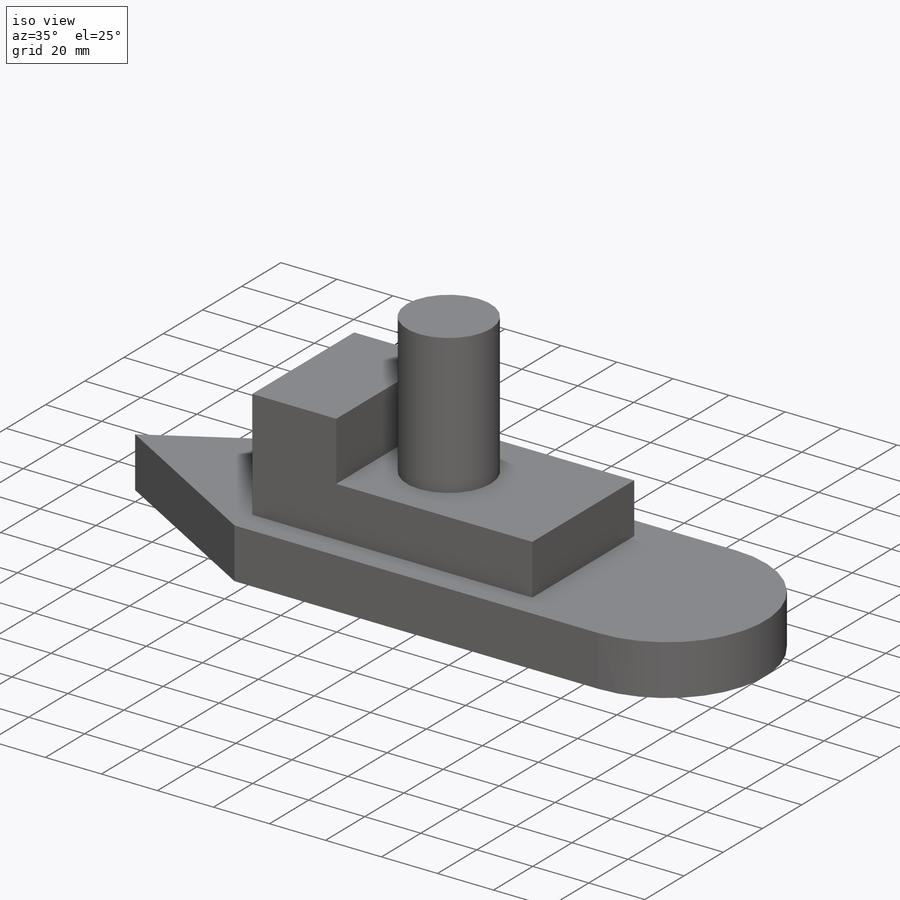
[diagram: iso view]
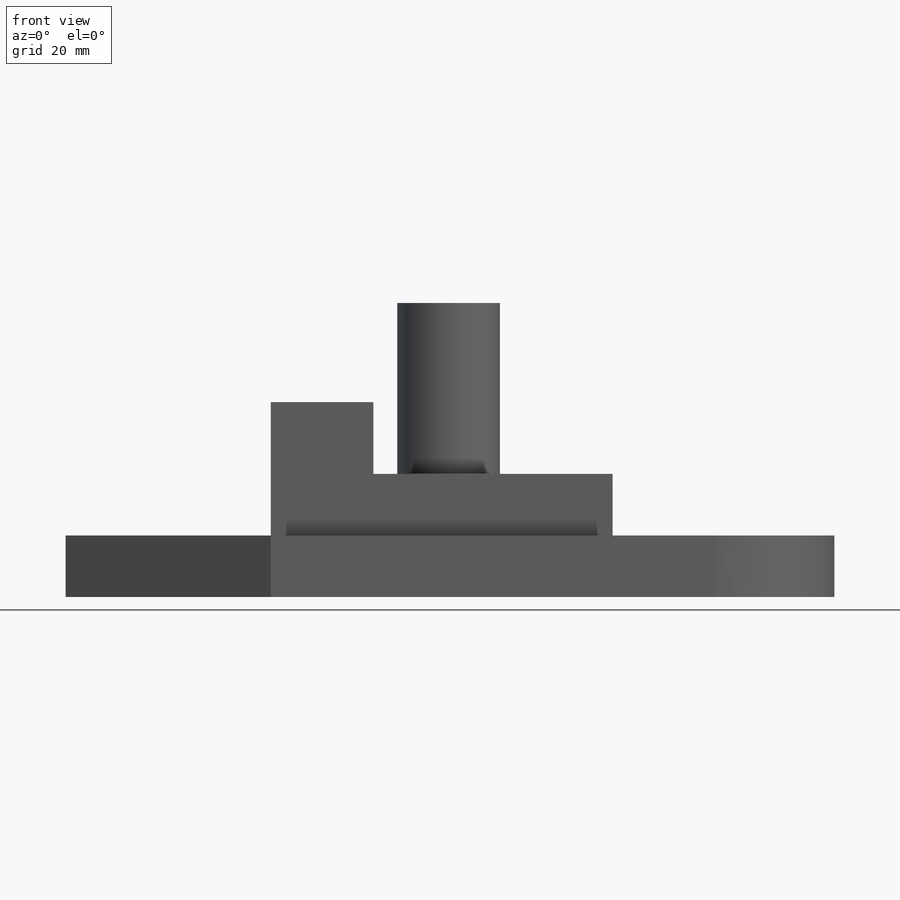
[diagram: front view]
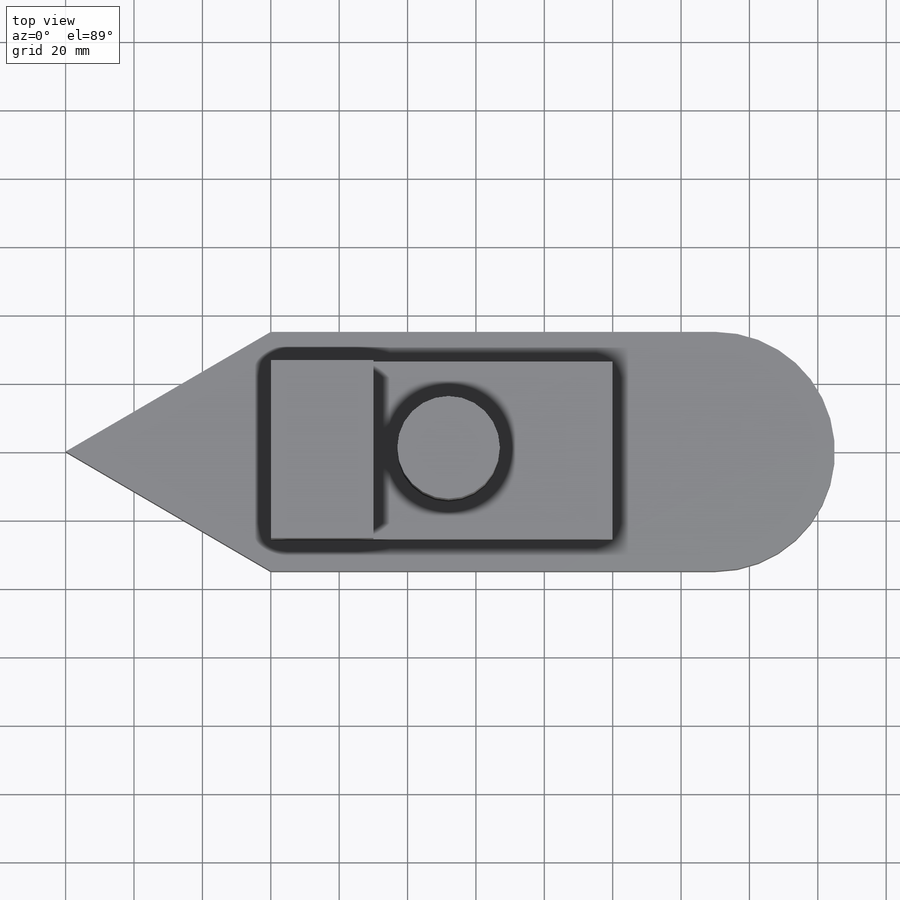
[diagram: top view]
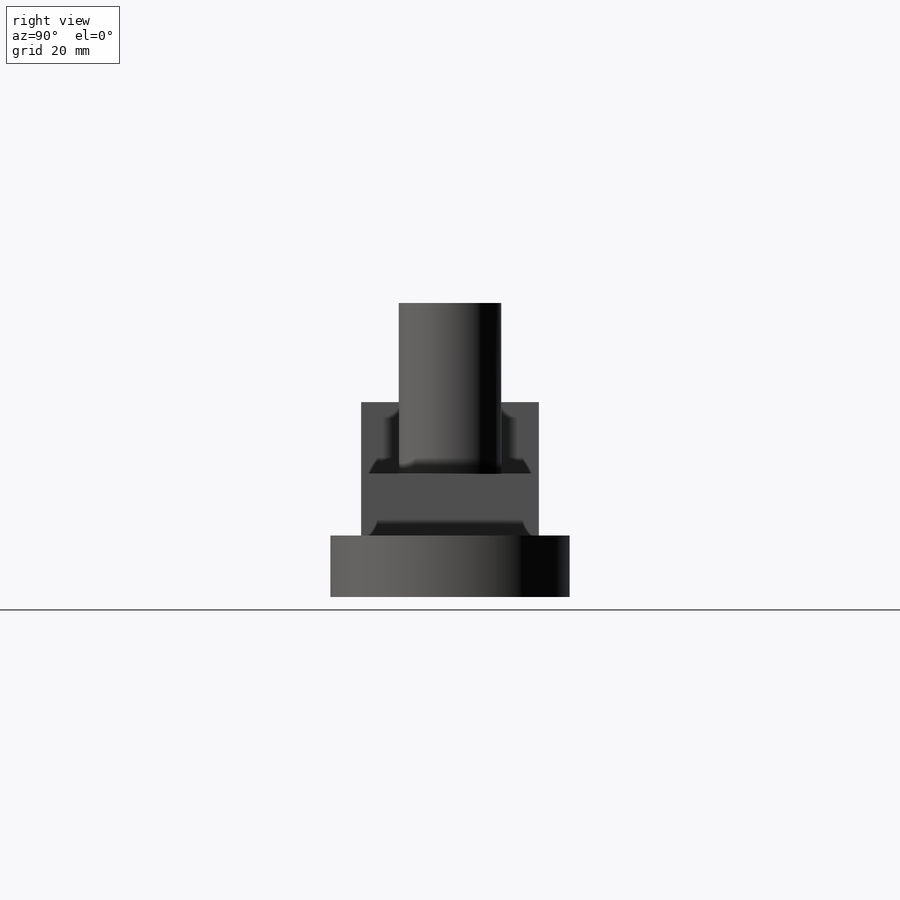
[diagram: right view]
SOLIDWORKS PART (.sldprt)
format: sldprt  version: not decoded by parser v0  size: 172,032 bytes
history: native  units: mm
features: sketch x4, extrude x4, material x1, plane x1 (+11 scaffold rows collapsed)
feature tree (21):
  scaffold x11  (default folders/planes/origin — collapsed)
  material  "Material <not specified>"
  plane  "HP"
  sketch  "Sketch1"  dims[c1.D2=35.0mm c1.D1=35.0mm c1.D3=130.0mm c1.D4=60.0mm c2.D1=225.0mm]
  extrude  "Boss-Extrude1"  Depth=18mm
  sketch  "Sketch2"  dims[D1=100.0mm D2=52.0mm D3=9.0mm D4=60.0mm]
  extrude  "Boss-Extrude2"  Depth=18mm
  sketch  "Sketch3"  dims[D1=30.0mm]
  extrude  "Boss-Extrude3"  Depth=21mm
  sketch  "Sketch4"  dims[D1=30.0mm D2=22.0mm D3=26.0mm]
  extrude  "Boss-Extrude4"  Depth=50mm
decode coverage: 8 of 8 modeling features carry decoded parameters
note: suppression state not decoded; provenance and decode notes live in map.json
